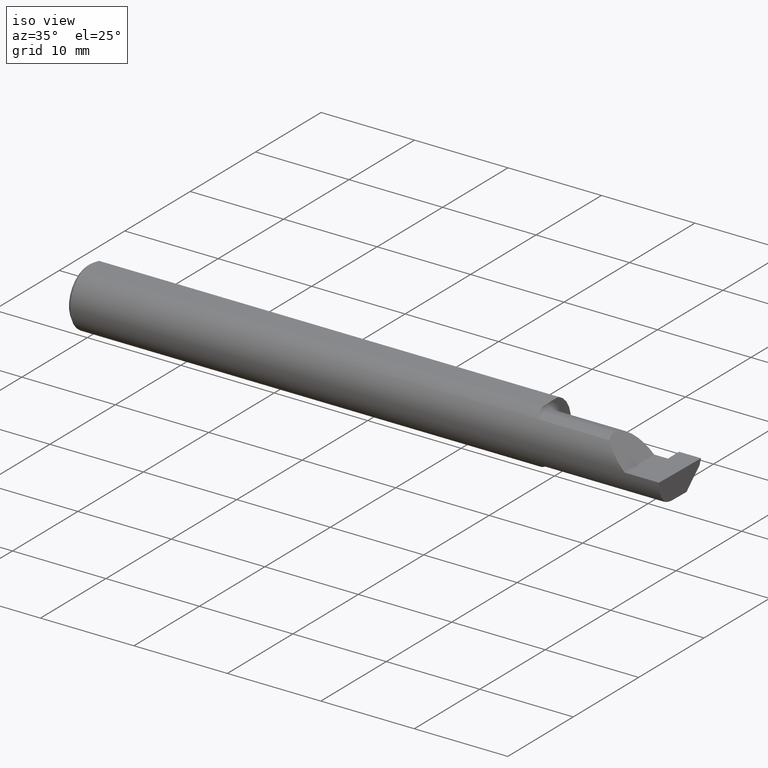
[diagram: clean part render]
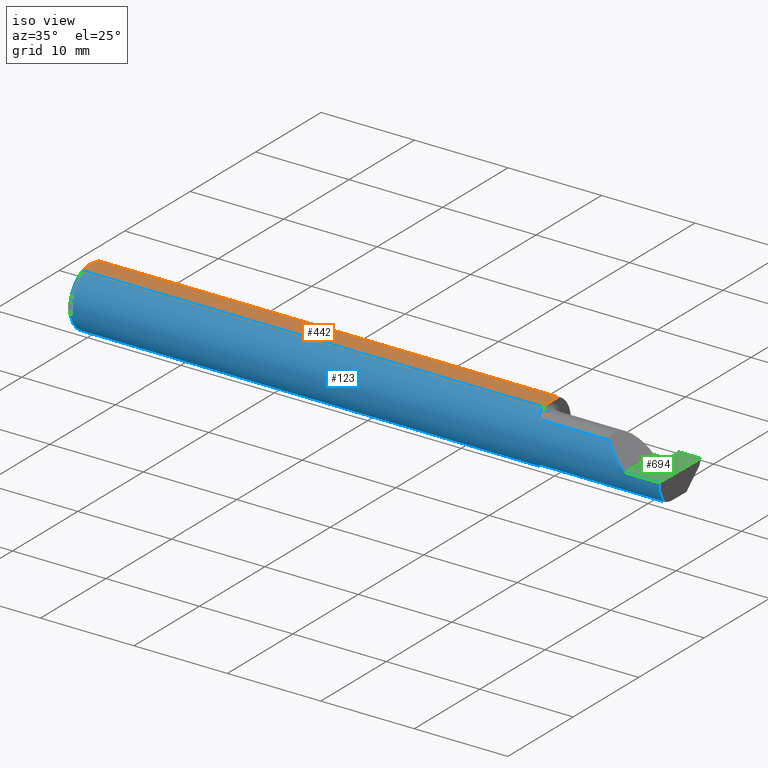
[diagram: same view with three faces highlighted in distinct colors, each labeled with its STEP entity id]
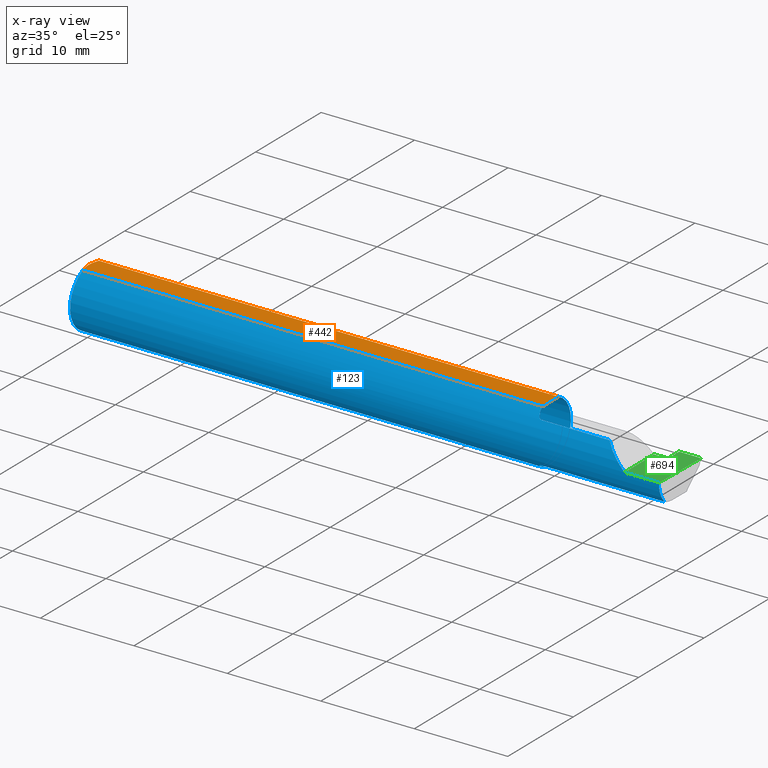
[diagram: x-ray of the same camera — body ghosted, the three highlighted faces saturated]
A machine part, iso view with three faces highlighted in distinct colors.
The next image is the same camera in x-ray (body ghosted, the three faces saturated) — at least one of them is partly hidden behind the body in this view.
Their STEP definitions:

[orange] entity #442 — the highlighted planar face has unit normal (0, -0, 1).
#4 = CARTESIAN_POINT ( 'NONE',  ( 1.950400391910593223, -0.01449986171080062253, 0.1148500000000000076 ) ) ;
#5 = B_SPLINE_CURVE_WITH_KNOTS ( 'NONE', 3,
 ( #114, #357, #62, #52, #540, #594 ),
 .UNSPECIFIED., .F., .F.,
 ( 4, 2, 4 ),
 ( 0.002396733445051246140, 0.003027584450080037307, 0.003658435455108828907 ),
 .UNSPECIFIED. ) ;
#25 = DIRECTION ( 'NONE',  ( -0.000000000000000000, 1.000000000000000000, 0.000000000000000000 ) ) ;
#29 = CARTESIAN_POINT ( 'NONE',  ( 1.949999999999999734, 0.0001781444078671173391, 0.1148500000000000076 ) ) ;
#37 = EDGE_CURVE ( 'NONE', #282, #392, #388, .T. ) ;
#38 = EDGE_LOOP ( 'NONE', ( #473, #41, #650, #240, #113, #84, #597 ) ) ;
#41 = ORIENTED_EDGE ( 'NONE', *, *, #199, .T. ) ;
#42 = EDGE_CURVE ( 'NONE', #392, #760, #169, .T. ) ;
#43 = VECTOR ( 'NONE', #221, 39.37007874015748143 ) ;
#44 = CARTESIAN_POINT ( 'NONE',  ( 0.01195732443765547617, -0.04120008761723503721, 0.1148499999999999938 ) ) ;
#47 = CARTESIAN_POINT ( 'NONE',  ( 0.004999999999999990563, 1.454187663965904829E-17, 0.1148500000000000076 ) ) ;
#52 = CARTESIAN_POINT ( 'NONE',  ( 0.005947935873631229539, 0.01679708999422689988, 0.1148500000000000076 ) ) ;
#62 = CARTESIAN_POINT ( 'NONE',  ( 0.009410502401328750890, 0.03310661131402438395, 0.1148499999999999938 ) ) ;
#77 = VERTEX_POINT ( 'NONE', #421 ) ;
#84 = ORIENTED_EDGE ( 'NONE', *, *, #93, .T. ) ;
#93 = EDGE_CURVE ( 'NONE', #760, #298, #5, .T. ) ;
#101 = CARTESIAN_POINT ( 'NONE',  ( 1.951326891871132618, -0.04895916665958131159, 0.1148500000000000076 ) ) ;
#103 = B_SPLINE_CURVE_WITH_KNOTS ( 'NONE', 3,
 ( #383, #566, #751, #510, #762, #644 ),
 .UNSPECIFIED., .F., .F.,
 ( 4, 2, 4 ),
 ( 0.009355882855462110265, 0.009420520835871136131, 0.009485158816280161997 ),
 .UNSPECIFIED. ) ;
#112 = CARTESIAN_POINT ( 'NONE',  ( 1.951090261609495835, -0.02916889382056605043, 0.1148499999999999938 ) ) ;
#113 = ORIENTED_EDGE ( 'NONE', *, *, #42, .T. ) ;
#114 = CARTESIAN_POINT ( 'NONE',  ( 0.01499999999999987454, 0.04895916665957496944, 0.1148500000000000076 ) ) ;
#159 = CARTESIAN_POINT ( 'NONE',  ( 0.004999999999999964542, -0.008410771716546833199, 0.1148500000000000215 ) ) ;
#169 = LINE ( 'NONE', #544, #257 ) ;
#172 = CARTESIAN_POINT ( 'NONE',  ( 1.949999999999999734, 0.04895916665957496944, 0.1148500000000000076 ) ) ;
#188 = FACE_OUTER_BOUND ( 'NONE', #38, .T. ) ;
#199 = EDGE_CURVE ( 'NONE', #290, #77, #103, .T. ) ;
#221 = DIRECTION ( 'NONE',  ( 1.000000000000000000, 0.000000000000000000, 0.000000000000000000 ) ) ;
#229 = CARTESIAN_POINT ( 'NONE',  ( 0.009415874254822409126, -0.03313958207962818675, 0.1148500000000000076 ) ) ;
#240 = ORIENTED_EDGE ( 'NONE', *, *, #37, .T. ) ;
#241 = DIRECTION ( 'NONE',  ( -1.000000000000000000, -0.000000000000000000, -0.000000000000000000 ) ) ;
#251 = CARTESIAN_POINT ( 'NONE',  ( 1.951365755776839350, -0.04385000000000001397, 0.1148500000000000076 ) ) ;
#257 = VECTOR ( 'NONE', #241, 39.37007874015748143 ) ;
#282 = VERTEX_POINT ( 'NONE', #29 ) ;
#290 = VERTEX_POINT ( 'NONE', #101 ) ;
#293 = CARTESIAN_POINT ( 'NONE',  ( 1.951365755776838906, -0.03650543323727820783, 0.1148500000000000215 ) ) ;
#298 = VERTEX_POINT ( 'NONE', #776 ) ;
#319 = EDGE_CURVE ( 'NONE', #298, #752, #460, .T. ) ;
#336 = CARTESIAN_POINT ( 'NONE',  ( 0.005932194444709711773, -0.01671525318617311101, 0.1148500000000000215 ) ) ;
#357 = CARTESIAN_POINT ( 'NONE',  ( 0.01193974418109658951, 0.04115525648180412555, 0.1148500000000000215 ) ) ;
#373 = EDGE_CURVE ( 'NONE', #752, #290, #718, .T. ) ;
#383 = CARTESIAN_POINT ( 'NONE',  ( 1.951326891871132618, -0.04895916665958131159, 0.1148500000000000076 ) ) ;
#388 = LINE ( 'NONE', #640, #672 ) ;
#392 = VERTEX_POINT ( 'NONE', #172 ) ;
#416 = AXIS2_PLACEMENT_3D ( 'NONE', #618, #426, #622 ) ;
#421 = CARTESIAN_POINT ( 'NONE',  ( 1.951365755776839350, -0.04385000000000001397, 0.1148500000000000076 ) ) ;
#426 = DIRECTION ( 'NONE',  ( 0.000000000000000000, -0.000000000000000000, 1.000000000000000000 ) ) ;
#439 = CARTESIAN_POINT ( 'NONE',  ( 1.949999999999999956, -0.007185469346090035854, 0.1148500000000000076 ) ) ;
#442 = ADVANCED_FACE ( 'NONE', ( #188 ), #739, .T. ) ;
#460 = B_SPLINE_CURVE_WITH_KNOTS ( 'NONE', 3,
 ( #47, #159, #336, #229, #44, #768 ),
 .UNSPECIFIED., .F., .F.,
 ( 4, 2, 4 ),
 ( 0.003658435455108828907, 0.004289327297787135992, 0.004920219140465443078 ),
 .UNSPECIFIED. ) ;
#463 = CARTESIAN_POINT ( 'NONE',  ( 0.000000000000000000, -0.04895916665957456698, 0.1148500000000000076 ) ) ;
#473 = ORIENTED_EDGE ( 'NONE', *, *, #373, .T. ) ;
#499 = B_SPLINE_CURVE_WITH_KNOTS ( 'NONE', 3,
 ( #251, #293, #112, #4, #439, #541 ),
 .UNSPECIFIED., .F., .F.,
 ( 4, 2, 4 ),
 ( 0.009485158816280161997, 0.01004274199597738476, 0.01060032517567460579 ),
 .UNSPECIFIED. ) ;
#510 = CARTESIAN_POINT ( 'NONE',  ( 1.951362484150211518, -0.04555293709217380499, 0.1148500000000000076 ) ) ;
#540 = CARTESIAN_POINT ( 'NONE',  ( 0.004999999999999962808, 0.008410227287019804779, 0.1148500000000000076 ) ) ;
#541 = CARTESIAN_POINT ( 'NONE',  ( 1.949999999999999734, 0.0001781444078671173391, 0.1148500000000000076 ) ) ;
#543 = EDGE_CURVE ( 'NONE', #77, #282, #499, .T. ) ;
#544 = CARTESIAN_POINT ( 'NONE',  ( 0.000000000000000000, 0.04895916665957456698, 0.1148500000000000076 ) ) ;
#566 = CARTESIAN_POINT ( 'NONE',  ( 1.951339737573306365, -0.04810771292240879904, 0.1148500000000000215 ) ) ;
#578 = CARTESIAN_POINT ( 'NONE',  ( 0.01499999999999987454, 0.04895916665957496944, 0.1148500000000000076 ) ) ;
#594 = CARTESIAN_POINT ( 'NONE',  ( 0.004999999999999990563, 1.454187663965904829E-17, 0.1148500000000000076 ) ) ;
#597 = ORIENTED_EDGE ( 'NONE', *, *, #319, .T. ) ;
#618 = CARTESIAN_POINT ( 'NONE',  ( 2.500000000000000000, -0.1248500000000000165, 0.1148500000000000076 ) ) ;
#622 = DIRECTION ( 'NONE',  ( 1.000000000000000000, 0.000000000000000000, -0.000000000000000000 ) ) ;
#640 = CARTESIAN_POINT ( 'NONE',  ( 1.949999999999999734, -0.1248500000000000165, 0.1148500000000000076 ) ) ;
#644 = CARTESIAN_POINT ( 'NONE',  ( 1.951365755776839350, -0.04385000000000001397, 0.1148500000000000076 ) ) ;
#650 = ORIENTED_EDGE ( 'NONE', *, *, #543, .T. ) ;
#672 = VECTOR ( 'NONE', #25, 39.37007874015748143 ) ;
#718 = LINE ( 'NONE', #463, #43 ) ;
#739 = PLANE ( 'NONE',  #416 ) ;
#751 = CARTESIAN_POINT ( 'NONE',  ( 1.951349474474282308, -0.04725615793152070782, 0.1148499999999999938 ) ) ;
#752 = VERTEX_POINT ( 'NONE', #779 ) ;
#760 = VERTEX_POINT ( 'NONE', #578 ) ;
#762 = CARTESIAN_POINT ( 'NONE',  ( 1.951365755776839572, -0.04470142088177662260, 0.1148500000000000076 ) ) ;
#768 = CARTESIAN_POINT ( 'NONE',  ( 0.01499999999999999944, -0.04895916665957456698, 0.1148500000000000076 ) ) ;
#776 = CARTESIAN_POINT ( 'NONE',  ( 0.004999999999999990563, 1.454187663965904829E-17, 0.1148500000000000076 ) ) ;
#779 = CARTESIAN_POINT ( 'NONE',  ( 0.01499999999999999944, -0.04895916665957456698, 0.1148500000000000076 ) ) ;

[blue] entity #123 — the highlighted cylindrical surface (edge-blend (fillet) strip) has radius 3.1712 mm, axis along (-1, -0, -0).
#2 = DIRECTION ( 'NONE',  ( 0.000000000000000000, 0.000000000000000000, 1.000000000000000000 ) ) ;
#18 = LINE ( 'NONE', #325, #309 ) ;
#19 = VECTOR ( 'NONE', #670, 39.37007874015748143 ) ;
#23 = CARTESIAN_POINT ( 'NONE',  ( 1.969784064659362288, -0.08911389870154562409, -0.08746251087962761406 ) ) ;
#42 = EDGE_CURVE ( 'NONE', #392, #760, #169, .T. ) ;
#43 = VECTOR ( 'NONE', #221, 39.37007874015748143 ) ;
#48 = ORIENTED_EDGE ( 'NONE', *, *, #42, .F. ) ;
#50 = CARTESIAN_POINT ( 'NONE',  ( 1.950756598855983626, -0.04384999999999998621, -0.1168961077196328385 ) ) ;
#53 = CIRCLE ( 'NONE', #89, 0.1248500000000000026 ) ;
#56 = CARTESIAN_POINT ( 'NONE',  ( 2.494835769263151537, -0.1248351010429638308, -0.03262966116142157480 ) ) ;
#59 = CARTESIAN_POINT ( 'NONE',  ( 2.494033449660867152, -0.09015216647662482874, -0.08637192471845768493 ) ) ;
#63 = CARTESIAN_POINT ( 'NONE',  ( 2.493072779947982820, -0.1248043149033065402, -0.09996577117162359916 ) ) ;
#64 = EDGE_CURVE ( 'NONE', #760, #562, #166, .T. ) ;
#75 = CARTESIAN_POINT ( 'NONE',  ( 1.955064983703084902, -0.06736177101644139076, -0.1052426774175049262 ) ) ;
#79 = CARTESIAN_POINT ( 'NONE',  ( 1.974999999999999867, -0.09015216647662482874, 0.08637192471845768493 ) ) ;
#81 = CARTESIAN_POINT ( 'NONE',  ( 1.960226514481664850, -0.07966992494485879150, -0.09623747760188192113 ) ) ;
#89 = AXIS2_PLACEMENT_3D ( 'NONE', #276, #706, #334 ) ;
#99 = ORIENTED_EDGE ( 'NONE', *, *, #584, .F. ) ;
#101 = CARTESIAN_POINT ( 'NONE',  ( 1.951326891871132618, -0.04895916665958131159, 0.1148500000000000076 ) ) ;
#107 = CARTESIAN_POINT ( 'NONE',  ( 1.961053217927789527, -0.08094812012701402271, 0.09514231764808568637 ) ) ;
#122 = EDGE_CURVE ( 'NONE', #195, #384, #287, .T. ) ;
#123 = ADVANCED_FACE ( 'NONE', ( #363 ), #474, .T. ) ;
#135 = DIRECTION ( 'NONE',  ( -1.000000000000000000, -0.000000000000000000, -0.000000000000000000 ) ) ;
#141 = CARTESIAN_POINT ( 'NONE',  ( 1.974999999999999867, -0.09015216647662478711, -0.08637192471845771269 ) ) ;
#144 = CARTESIAN_POINT ( 'NONE',  ( 1.974999999999999867, -0.09015216647662478711, -0.08637192471845771269 ) ) ;
#153 = VECTOR ( 'NONE', #414, 39.37007874015748143 ) ;
#163 = CARTESIAN_POINT ( 'NONE',  ( 0.000000000000000000, 0.000000000000000000, 0.000000000000000000 ) ) ;
#166 = CIRCLE ( 'NONE', #415, 0.1248500000000000026 ) ;
#168 = AXIS2_PLACEMENT_3D ( 'NONE', #163, #477, #412 ) ;
#169 = LINE ( 'NONE', #544, #257 ) ;
#171 = B_SPLINE_CURVE_WITH_KNOTS ( 'NONE', 3,
 ( #50, #489, #482, #789 ),
 .UNSPECIFIED., .F., .F.,
 ( 4, 4 ),
 ( 0.001640801893433578747, 0.002088276671954489034 ),
 .UNSPECIFIED. ) ;
#172 = CARTESIAN_POINT ( 'NONE',  ( 1.949999999999999734, 0.04895916665957496944, 0.1148500000000000076 ) ) ;
#176 = CARTESIAN_POINT ( 'NONE',  ( 2.190999999999999837, -0.09015216647662482874, 0.08637192471845768493 ) ) ;
#195 = VERTEX_POINT ( 'NONE', #79 ) ;
#209 = ORIENTED_EDGE ( 'NONE', *, *, #572, .T. ) ;
#214 = ORIENTED_EDGE ( 'NONE', *, *, #373, .F. ) ;
#217 = CARTESIAN_POINT ( 'NONE',  ( 1.951326891871132618, -0.04895916665958131159, 0.1148500000000000076 ) ) ;
#221 = DIRECTION ( 'NONE',  ( 1.000000000000000000, 0.000000000000000000, 0.000000000000000000 ) ) ;
#230 = CIRCLE ( 'NONE', #685, 0.1248500000000000026 ) ;
#231 = VERTEX_POINT ( 'NONE', #141 ) ;
#241 = DIRECTION ( 'NONE',  ( -1.000000000000000000, -0.000000000000000000, -0.000000000000000000 ) ) ;
#242 = EDGE_CURVE ( 'NONE', #555, #392, #230, .T. ) ;
#250 = B_SPLINE_CURVE_WITH_KNOTS ( 'NONE', 3,
 ( #217, #649, #475, #469, #107, #596, #710, #289, #478, #403 ),
 .UNSPECIFIED., .F., .F.,
 ( 4, 2, 2, 2, 4 ),
 ( 5.065792501964224469E-07, 0.0007388407002080941369, 0.001108007760687042265, 0.001292591290926511016, 0.001477174821165979550 ),
 .UNSPECIFIED. ) ;
#253 = CARTESIAN_POINT ( 'NONE',  ( 1.950756598855983626, -0.04384999999999998621, -0.1168961077196328385 ) ) ;
#257 = VECTOR ( 'NONE', #241, 39.37007874015748143 ) ;
#260 = VERTEX_POINT ( 'NONE', #680 ) ;
#267 = CARTESIAN_POINT ( 'NONE',  ( 1.949999999999999734, 0.000000000000000000, 0.000000000000000000 ) ) ;
#276 = CARTESIAN_POINT ( 'NONE',  ( 0.01499999999999999944, 0.000000000000000000, 0.000000000000000000 ) ) ;
#284 = CARTESIAN_POINT ( 'NONE',  ( 2.190999999999999837, -0.09015216647662482874, -0.08637192471845768493 ) ) ;
#287 = LINE ( 'NONE', #176, #19 ) ;
#289 = CARTESIAN_POINT ( 'NONE',  ( 1.970195245915189242, -0.08928014009842913379, 0.08728826463235836441 ) ) ;
#290 = VERTEX_POINT ( 'NONE', #101 ) ;
#300 = DIRECTION ( 'NONE',  ( -1.000000000000000000, -0.000000000000000000, -0.000000000000000000 ) ) ;
#309 = VECTOR ( 'NONE', #135, 39.37007874015748143 ) ;
#316 = CARTESIAN_POINT ( 'NONE',  ( 1.965875432832430825, -0.08647060418110448510, -0.09007670266896471156 ) ) ;
#317 = EDGE_CURVE ( 'NONE', #562, #752, #53, .T. ) ;
#318 = EDGE_LOOP ( 'NONE', ( #773, #209, #497, #560, #781, #476, #700, #214, #427, #483, #48, #501, #558, #99 ) ) ;
#325 = CARTESIAN_POINT ( 'NONE',  ( 3.749399456654637998E-32, -0.1248500000000000026, 3.061616997868380676E-16 ) ) ;
#334 = DIRECTION ( 'NONE',  ( 0.000000000000000000, 0.000000000000000000, 1.000000000000000000 ) ) ;
#339 = EDGE_CURVE ( 'NONE', #260, #231, #654, .T. ) ;
#342 = EDGE_CURVE ( 'NONE', #290, #195, #250, .T. ) ;
#363 = FACE_OUTER_BOUND ( 'NONE', #318, .T. ) ;
#372 = CARTESIAN_POINT ( 'NONE',  ( 1.949999999999999734, -0.02715330672748003313, -0.1218614805168695830 ) ) ;
#373 = EDGE_CURVE ( 'NONE', #752, #290, #718, .T. ) ;
#379 = CARTESIAN_POINT ( 'NONE',  ( 2.495690077103728921, -0.1248499999950965084, 1.733801157256528502E-17 ) ) ;
#384 = VERTEX_POINT ( 'NONE', #472 ) ;
#386 = CARTESIAN_POINT ( 'NONE',  ( 1.953850144156349389, -0.06295012366509163126, -0.1079450122012244745 ) ) ;
#389 = VERTEX_POINT ( 'NONE', #408 ) ;
#390 = CARTESIAN_POINT ( 'NONE',  ( 1.958278800716857893, -0.07573621487658345475, -0.09938639293507163519 ) ) ;
#392 = VERTEX_POINT ( 'NONE', #172 ) ;
#403 = CARTESIAN_POINT ( 'NONE',  ( 1.974999999999999867, -0.09015216647662482874, 0.08637192471845768493 ) ) ;
#408 = CARTESIAN_POINT ( 'NONE',  ( 2.495688583004118666, -0.1248499869621840785, -5.705736120969982501E-05 ) ) ;
#412 = DIRECTION ( 'NONE',  ( 0.000000000000000000, 0.000000000000000000, 1.000000000000000000 ) ) ;
#414 = DIRECTION ( 'NONE',  ( -1.000000000000000000, -0.000000000000000000, -0.000000000000000000 ) ) ;
#415 = AXIS2_PLACEMENT_3D ( 'NONE', #663, #300, #2 ) ;
#427 = ORIENTED_EDGE ( 'NONE', *, *, #317, .F. ) ;
#432 = CARTESIAN_POINT ( 'NONE',  ( 2.287163018370355072, -0.1127002472623169216, 0.06283698162964553025 ) ) ;
#443 = CARTESIAN_POINT ( 'NONE',  ( 1.972259638933030690, -0.09015216647662500915, -0.08637192471845750452 ) ) ;
#446 = CARTESIAN_POINT ( 'NONE',  ( 2.495688583004118666, -0.1248499869621840785, -5.705736120969982501E-05 ) ) ;
#463 = CARTESIAN_POINT ( 'NONE',  ( 0.000000000000000000, -0.04895916665957456698, 0.1148500000000000076 ) ) ;
#465 = EDGE_CURVE ( 'NONE', #389, #652, #500, .T. ) ;
#469 = CARTESIAN_POINT ( 'NONE',  ( 1.959117122045984427, -0.07738857672837956558, 0.09808127502721003532 ) ) ;
#470 = EDGE_CURVE ( 'NONE', #503, #384, #657, .T. ) ;
#472 = CARTESIAN_POINT ( 'NONE',  ( 2.263628075281542529, -0.09015216647662421812, 0.08637192471845822617 ) ) ;
#474 = CYLINDRICAL_SURFACE ( 'NONE', #168, 0.1248500000000000026 ) ;
#475 = CARTESIAN_POINT ( 'NONE',  ( 1.954335346929731321, -0.06618116991733535848, 0.1062694618618282988 ) ) ;
#476 = ORIENTED_EDGE ( 'NONE', *, *, #122, .F. ) ;
#477 = DIRECTION ( 'NONE',  ( -1.000000000000000000, -0.000000000000000000, -0.000000000000000000 ) ) ;
#478 = CARTESIAN_POINT ( 'NONE',  ( 1.972502509400850146, -0.09015216647698158503, 0.08637192471808541328 ) ) ;
#482 = CARTESIAN_POINT ( 'NONE',  ( 1.949999999999999734, -0.03284222813693380566, -0.1205938689030582739 ) ) ;
#483 = ORIENTED_EDGE ( 'NONE', *, *, #64, .F. ) ;
#489 = CARTESIAN_POINT ( 'NONE',  ( 1.950242610568497570, -0.03840785182185595115, -0.1189375631818110762 ) ) ;
#497 = ORIENTED_EDGE ( 'NONE', *, *, #465, .T. ) ;
#500 = LINE ( 'NONE', #63, #636 ) ;
#501 = ORIENTED_EDGE ( 'NONE', *, *, #242, .F. ) ;
#503 = VERTEX_POINT ( 'NONE', #682 ) ;
#506 = CARTESIAN_POINT ( 'NONE',  ( 1.951227715916083794, -0.04883822427082840090, -0.1150249279297937410 ) ) ;
#512 = CARTESIAN_POINT ( 'NONE',  ( 1.964311064734461043, -0.08485061678078677228, -0.09161469295857038730 ) ) ;
#513 = DIRECTION ( 'NONE',  ( 1.000000000000000000, 0.000000000000000000, 0.000000000000000000 ) ) ;
#544 = CARTESIAN_POINT ( 'NONE',  ( 0.000000000000000000, 0.04895916665957456698, 0.1148500000000000076 ) ) ;
#548 = EDGE_CURVE ( 'NONE', #567, #555, #171, .T. ) ;
#555 = VERTEX_POINT ( 'NONE', #372 ) ;
#558 = ORIENTED_EDGE ( 'NONE', *, *, #548, .F. ) ;
#560 = ORIENTED_EDGE ( 'NONE', *, *, #611, .T. ) ;
#562 = VERTEX_POINT ( 'NONE', #613 ) ;
#567 = VERTEX_POINT ( 'NONE', #253 ) ;
#570 = B_SPLINE_CURVE_WITH_KNOTS ( 'NONE', 3,
 ( #144, #443, #23, #316, #512, #81, #390, #75, #386, #757, #506, #688 ),
 .UNSPECIFIED., .F., .F.,
 ( 4, 2, 2, 2, 2, 4 ),
 ( 1.963988863453036158E-07, 0.0002052720857047455423, 0.0004103477725231457476, 0.0008204991461599567834, 0.001230650519796767711, 0.001640801893433578747 ),
 .UNSPECIFIED. ) ;
#572 = EDGE_CURVE ( 'NONE', #260, #389, #740, .T. ) ;
#578 = CARTESIAN_POINT ( 'NONE',  ( 0.01499999999999987454, 0.04895916665957496944, 0.1148500000000000076 ) ) ;
#584 = EDGE_CURVE ( 'NONE', #231, #567, #570, .T. ) ;
#596 = CARTESIAN_POINT ( 'NONE',  ( 1.964990549600782455, -0.08554147198593010926, 0.09096407607054017574 ) ) ;
#607 = CARTESIAN_POINT ( 'NONE',  ( 2.494256244271084721, -0.1126860773865890480, -0.06285177167860772629 ) ) ;
#611 = EDGE_CURVE ( 'NONE', #652, #503, #18, .T. ) ;
#613 = CARTESIAN_POINT ( 'NONE',  ( 0.01499999999999999944, 0.000000000000000000, -0.1248500000000000026 ) ) ;
#636 = VECTOR ( 'NONE', #678, 39.37007874015748854 ) ;
#649 = CARTESIAN_POINT ( 'NONE',  ( 1.952489051389917130, -0.05793447593726087225, 0.1110239341510881605 ) ) ;
#652 = VERTEX_POINT ( 'NONE', #379 ) ;
#654 = LINE ( 'NONE', #284, #153 ) ;
#657 =( BOUNDED_CURVE ( )  B_SPLINE_CURVE ( 3, ( #668, #785, #432, #673 ),
 .UNSPECIFIED., .F., .T. ) 
 B_SPLINE_CURVE_WITH_KNOTS ( ( 4, 4 ),
 ( 4.712388980384690562, 5.476375539154175520 ),
 .UNSPECIFIED. ) 
 CURVE ( )  GEOMETRIC_REPRESENTATION_ITEM ( )  RATIONAL_B_SPLINE_CURVE ( ( 1.000000000000000000, 0.9519489620492029847, 0.9519489620492029847, 1.000000000000000000 ) ) 
 REPRESENTATION_ITEM ( '' )  );
#663 = CARTESIAN_POINT ( 'NONE',  ( 0.01499999999999999944, 0.000000000000000000, 0.000000000000000000 ) ) ;
#668 = CARTESIAN_POINT ( 'NONE',  ( 2.350000000000000089, -0.1248500000000000026, 1.836970198721028825E-17 ) ) ;
#670 = DIRECTION ( 'NONE',  ( 1.000000000000000000, 0.000000000000000000, 0.000000000000000000 ) ) ;
#673 = CARTESIAN_POINT ( 'NONE',  ( 2.263628075281542529, -0.09015216647662421812, 0.08637192471845822617 ) ) ;
#678 = DIRECTION ( 'NONE',  ( 0.02617296143184116158, -0.0004568507411563382521, 0.9996573249755575929 ) ) ;
#680 = CARTESIAN_POINT ( 'NONE',  ( 2.494033449660867152, -0.09015216647662482874, -0.08637192471845768493 ) ) ;
#682 = CARTESIAN_POINT ( 'NONE',  ( 2.350000000000000089, -0.1248500000000000026, 1.836970198721028825E-17 ) ) ;
#685 = AXIS2_PLACEMENT_3D ( 'NONE', #267, #513, #758 ) ;
#688 = CARTESIAN_POINT ( 'NONE',  ( 1.950756598855983626, -0.04384999999999998621, -0.1168961077196328385 ) ) ;
#700 = ORIENTED_EDGE ( 'NONE', *, *, #342, .F. ) ;
#706 = DIRECTION ( 'NONE',  ( -1.000000000000000000, -0.000000000000000000, -0.000000000000000000 ) ) ;
#710 = CARTESIAN_POINT ( 'NONE',  ( 1.966486677516483983, -0.08696861555848790781, 0.08959154238187716501 ) ) ;
#718 = LINE ( 'NONE', #463, #43 ) ;
#740 =( BOUNDED_CURVE ( )  B_SPLINE_CURVE ( 3, ( #59, #607, #56, #446 ),
 .UNSPECIFIED., .F., .T. ) 
 B_SPLINE_CURVE_WITH_KNOTS ( ( 4, 4 ),
 ( 0.2190942387645155864, 0.9826237902196512941 ),
 .UNSPECIFIED. ) 
 CURVE ( )  GEOMETRIC_REPRESENTATION_ITEM ( )  RATIONAL_B_SPLINE_CURVE ( ( 1.000000000000000000, 0.9520057322288819623, 0.9520057322288819623, 1.000000000000000000 ) ) 
 REPRESENTATION_ITEM ( '' )  );
#752 = VERTEX_POINT ( 'NONE', #779 ) ;
#757 = CARTESIAN_POINT ( 'NONE',  ( 1.951929090759343399, -0.05370719728932733111, -0.1128289886859671631 ) ) ;
#758 = DIRECTION ( 'NONE',  ( 0.000000000000000000, 0.000000000000000000, -1.000000000000000000 ) ) ;
#760 = VERTEX_POINT ( 'NONE', #578 ) ;
#773 = ORIENTED_EDGE ( 'NONE', *, *, #339, .F. ) ;
#779 = CARTESIAN_POINT ( 'NONE',  ( 0.01499999999999999944, -0.04895916665957456698, 0.1148500000000000076 ) ) ;
#781 = ORIENTED_EDGE ( 'NONE', *, *, #470, .T. ) ;
#785 = CARTESIAN_POINT ( 'NONE',  ( 2.317406910344188997, -0.1248500000000000304, 0.03259308965581166062 ) ) ;
#789 = CARTESIAN_POINT ( 'NONE',  ( 1.949999999999999734, -0.02715330672748003313, -0.1218614805168695830 ) ) ;

[green] entity #694 — the highlighted planar face has unit normal (-0, 0, -1).
#1 = ORIENTED_EDGE ( 'NONE', *, *, #611, .F. ) ;
#6 = VERTEX_POINT ( 'NONE', #311 ) ;
#18 = LINE ( 'NONE', #325, #309 ) ;
#20 = VECTOR ( 'NONE', #28, 39.37007874015748143 ) ;
#24 = LINE ( 'NONE', #197, #308 ) ;
#26 = PLANE ( 'NONE',  #591 ) ;
#28 = DIRECTION ( 'NONE',  ( 1.000000000000000000, -0.000000000000000000, -0.000000000000000000 ) ) ;
#45 = VERTEX_POINT ( 'NONE', #734 ) ;
#76 = EDGE_CURVE ( 'NONE', #6, #45, #603, .T. ) ;
#78 = LINE ( 'NONE', #684, #770 ) ;
#85 = CARTESIAN_POINT ( 'NONE',  ( 2.399999999999999911, 0.1221499999999999808, -3.306546357697866753E-19 ) ) ;
#94 = DIRECTION ( 'NONE',  ( 0.01744642479411464761, 0.9998477995484629233, -2.135106780035675284E-18 ) ) ;
#133 = CARTESIAN_POINT ( 'NONE',  ( 2.500000000000000000, -0.2000000000000000111, 0.000000000000000000 ) ) ;
#135 = DIRECTION ( 'NONE',  ( -1.000000000000000000, -0.000000000000000000, -0.000000000000000000 ) ) ;
#173 = EDGE_LOOP ( 'NONE', ( #1, #539, #179, #433, #437, #219, #361 ) ) ;
#175 = VERTEX_POINT ( 'NONE', #211 ) ;
#177 = EDGE_CURVE ( 'NONE', #662, #508, #24, .T. ) ;
#179 = ORIENTED_EDGE ( 'NONE', *, *, #717, .F. ) ;
#190 = CARTESIAN_POINT ( 'NONE',  ( 2.408184773821555158, 0.05414999999999995511, 5.622061142621132155E-18 ) ) ;
#197 = CARTESIAN_POINT ( 'NONE',  ( 2.412639385688541083, -0.2015220966010469739, 1.069858966880746915E-17 ) ) ;
#205 = CARTESIAN_POINT ( 'NONE',  ( 2.407000000000000028, 0.1221499999999999808, -3.306546357697866753E-19 ) ) ;
#211 = CARTESIAN_POINT ( 'NONE',  ( 2.500000000000000444, 0.1221499999999999808, 1.947508823608312588E-17 ) ) ;
#216 = LINE ( 'NONE', #582, #468 ) ;
#219 = ORIENTED_EDGE ( 'NONE', *, *, #76, .F. ) ;
#266 = LINE ( 'NONE', #85, #20 ) ;
#270 = FACE_OUTER_BOUND ( 'NONE', #173, .T. ) ;
#292 = DIRECTION ( 'NONE',  ( 1.000000000000000000, 0.000000000000000000, 0.000000000000000000 ) ) ;
#308 = VECTOR ( 'NONE', #550, 39.37007874015748143 ) ;
#309 = VECTOR ( 'NONE', #135, 39.37007874015748143 ) ;
#311 = CARTESIAN_POINT ( 'NONE',  ( 2.350000000000000089, 0.05414999999999988572, 1.836970198721028825E-17 ) ) ;
#321 = DIRECTION ( 'NONE',  ( -0.000000000000000000, 1.000000000000000000, -0.000000000000000000 ) ) ;
#325 = CARTESIAN_POINT ( 'NONE',  ( 3.749399456654637998E-32, -0.1248500000000000026, 3.061616997868380676E-16 ) ) ;
#348 = CARTESIAN_POINT ( 'NONE',  ( 1.949999999999999956, 0.05414999999999998981, 6.735557395310438818E-17 ) ) ;
#361 = ORIENTED_EDGE ( 'NONE', *, *, #696, .F. ) ;
#379 = CARTESIAN_POINT ( 'NONE',  ( 2.495690077103728921, -0.1248499999950965084, 1.733801157256528502E-17 ) ) ;
#402 = EDGE_CURVE ( 'NONE', #652, #175, #664, .T. ) ;
#433 = ORIENTED_EDGE ( 'NONE', *, *, #177, .T. ) ;
#437 = ORIENTED_EDGE ( 'NONE', *, *, #750, .T. ) ;
#468 = VECTOR ( 'NONE', #771, 39.37007874015748143 ) ;
#503 = VERTEX_POINT ( 'NONE', #682 ) ;
#508 = VERTEX_POINT ( 'NONE', #190 ) ;
#536 = VECTOR ( 'NONE', #292, 39.37007874015748143 ) ;
#539 = ORIENTED_EDGE ( 'NONE', *, *, #402, .T. ) ;
#550 = DIRECTION ( 'NONE',  ( 0.01742050049977531337, -0.9998482515673753346, -2.130797594924657248E-18 ) ) ;
#582 = CARTESIAN_POINT ( 'NONE',  ( 2.499999999999999112, 0.05415000000000026043, 1.021357228216303553E-31 ) ) ;
#591 = AXIS2_PLACEMENT_3D ( 'NONE', #133, #631, #637 ) ;
#603 = LINE ( 'NONE', #348, #536 ) ;
#611 = EDGE_CURVE ( 'NONE', #652, #503, #18, .T. ) ;
#631 = DIRECTION ( 'NONE',  ( -1.224646799147352221E-16, 0.000000000000000000, -1.000000000000000000 ) ) ;
#637 = DIRECTION ( 'NONE',  ( -1.000000000000000000, 0.000000000000000000, 1.224646799147352221E-16 ) ) ;
#652 = VERTEX_POINT ( 'NONE', #379 ) ;
#662 = VERTEX_POINT ( 'NONE', #205 ) ;
#664 = LINE ( 'NONE', #780, #722 ) ;
#682 = CARTESIAN_POINT ( 'NONE',  ( 2.350000000000000089, -0.1248500000000000026, 1.836970198721028825E-17 ) ) ;
#684 = CARTESIAN_POINT ( 'NONE',  ( 2.350000000000000089, -0.2000000000000000111, 1.836970198721028825E-17 ) ) ;
#694 = ADVANCED_FACE ( 'NONE', ( #270 ), #26, .F. ) ;
#696 = EDGE_CURVE ( 'NONE', #503, #6, #78, .T. ) ;
#717 = EDGE_CURVE ( 'NONE', #662, #175, #266, .T. ) ;
#722 = VECTOR ( 'NONE', #94, 39.37007874015748854 ) ;
#734 = CARTESIAN_POINT ( 'NONE',  ( 2.407000000000000028, 0.05414999999999994817, 6.735575921201429717E-17 ) ) ;
#750 = EDGE_CURVE ( 'NONE', #508, #45, #216, .T. ) ;
#770 = VECTOR ( 'NONE', #321, 39.37007874015748143 ) ;
#771 = DIRECTION ( 'NONE',  ( -1.000000000000000000, -3.281532433428415777E-15, 1.224646799147352221E-16 ) ) ;
#780 = CARTESIAN_POINT ( 'NONE',  ( 2.494380489674781209, -0.1999019447116721915, 6.881915332554903690E-19 ) ) ;